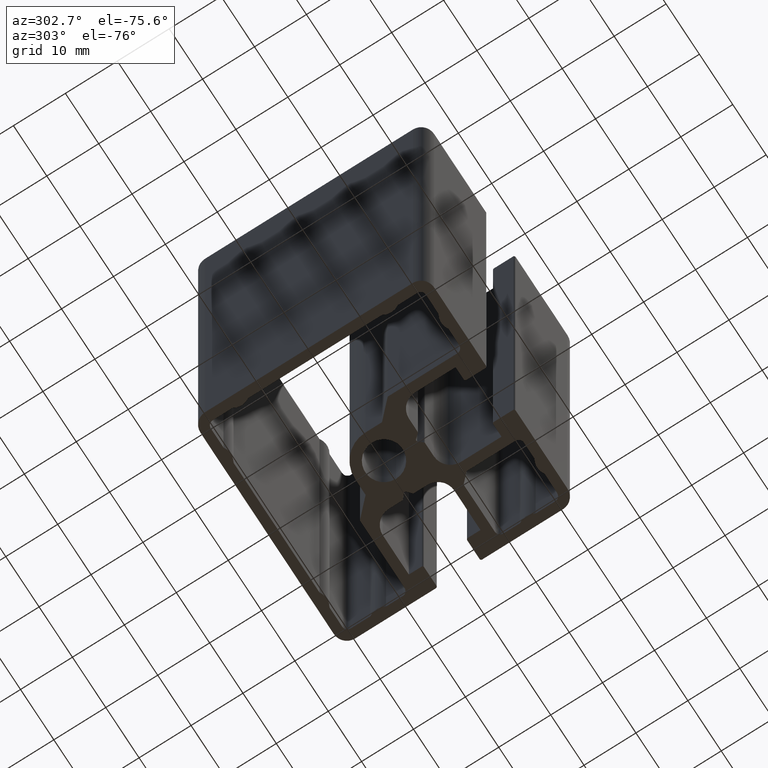
[diagram: clean part render]
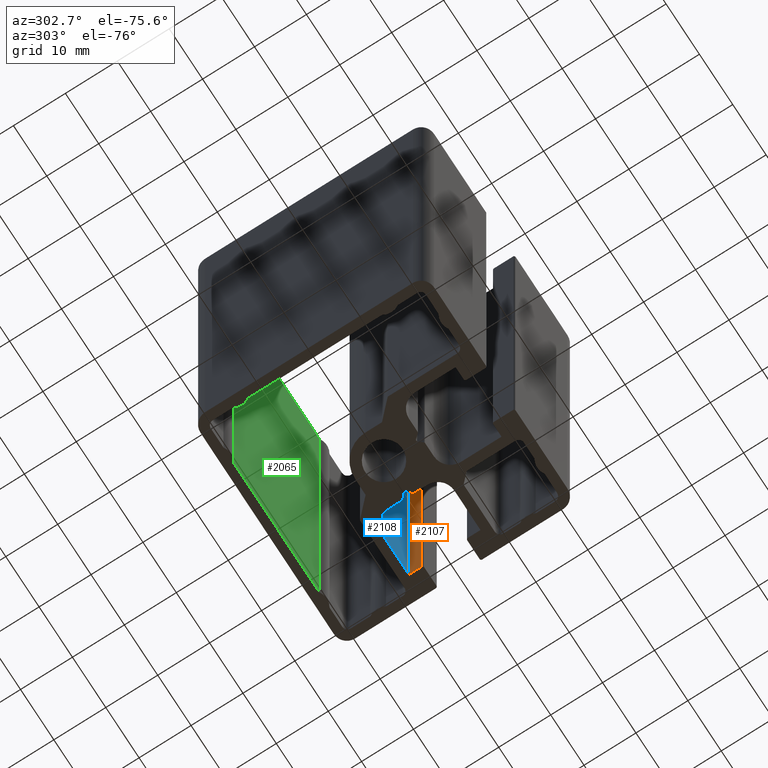
[diagram: same view with three faces highlighted in distinct colors, each labeled with its STEP entity id]
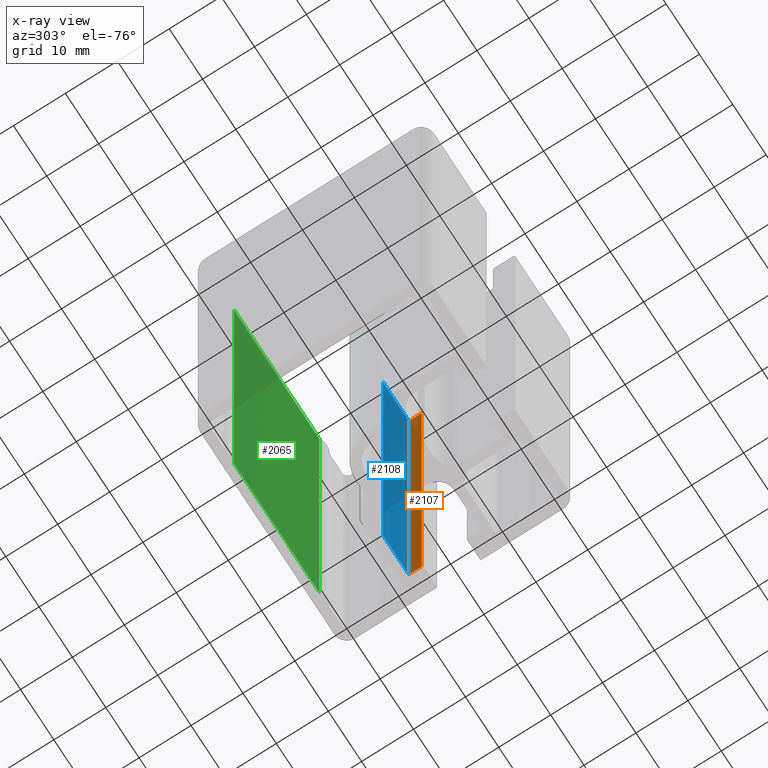
[diagram: x-ray of the same camera — body ghosted, the three highlighted faces saturated]
A machine part, auxiliary view with three faces highlighted in distinct colors.
The next image is the same camera in x-ray (body ghosted, the three faces saturated) — at least one of them is partly hidden behind the body in this view.
Their STEP definitions:

[orange] entity #2107 — the highlighted planar face has unit normal (1, 0, 0).
#279=FACE_OUTER_BOUND('',#387,.T.);
#387=EDGE_LOOP('',(#1693,#1694,#1695,#1696));
#579=LINE('',#3529,#781);
#580=LINE('',#3533,#782);
#581=LINE('',#3535,#783);
#582=LINE('',#3536,#784);
#781=VECTOR('',#2892,100.);
#782=VECTOR('',#2897,2.45);
#783=VECTOR('',#2898,100.);
#784=VECTOR('',#2899,2.45);
#997=VERTEX_POINT('',#3526);
#998=VERTEX_POINT('',#3528);
#999=VERTEX_POINT('',#3532);
#1000=VERTEX_POINT('',#3534);
#1292=EDGE_CURVE('',#998,#997,#579,.T.);
#1294=EDGE_CURVE('',#999,#997,#580,.T.);
#1295=EDGE_CURVE('',#1000,#999,#581,.T.);
#1296=EDGE_CURVE('',#998,#1000,#582,.T.);
#1693=ORIENTED_EDGE('',*,*,#1294,.F.);
#1694=ORIENTED_EDGE('',*,*,#1295,.F.);
#1695=ORIENTED_EDGE('',*,*,#1296,.F.);
#1696=ORIENTED_EDGE('',*,*,#1292,.T.);
#2006=PLANE('',#2316);
#2107=ADVANCED_FACE('',(#279),#2006,.F.);
#2316=AXIS2_PLACEMENT_3D('',#3531,#2895,#2896);
#2892=DIRECTION('',(0.,0.,1.));
#2895=DIRECTION('center_axis',(1.,0.,0.));
#2896=DIRECTION('ref_axis',(0.,1.,0.));
#2897=DIRECTION('',(0.,-1.,0.));
#2898=DIRECTION('',(0.,0.,1.));
#2899=DIRECTION('',(0.,1.,0.));
#3526=CARTESIAN_POINT('',(18.2000000000006,4.44999999999999,100.));
#3528=CARTESIAN_POINT('',(18.2000000000006,4.44999999999999,0.));
#3529=CARTESIAN_POINT('',(18.2000000000006,4.44999999999999,0.));
#3531=CARTESIAN_POINT('Origin',(18.2000000000006,4.44999999999999,0.));
#3532=CARTESIAN_POINT('',(18.2000000000006,6.9,100.));
#3533=CARTESIAN_POINT('',(18.2000000000006,2.225,100.));
#3534=CARTESIAN_POINT('',(18.2000000000006,6.9,0.));
#3535=CARTESIAN_POINT('',(18.2000000000006,6.9,0.));
#3536=CARTESIAN_POINT('',(18.2000000000006,2.225,0.));

[blue] entity #2108 — the highlighted planar face has unit normal (-0, 1, 0).
#280=FACE_OUTER_BOUND('',#388,.T.);
#388=EDGE_LOOP('',(#1697,#1698,#1699,#1700));
#581=LINE('',#3535,#783);
#583=LINE('',#3539,#785);
#584=LINE('',#3541,#786);
#585=LINE('',#3542,#787);
#783=VECTOR('',#2898,100.);
#785=VECTOR('',#2902,7.8);
#786=VECTOR('',#2903,100.);
#787=VECTOR('',#2904,7.8);
#999=VERTEX_POINT('',#3532);
#1000=VERTEX_POINT('',#3534);
#1001=VERTEX_POINT('',#3538);
#1002=VERTEX_POINT('',#3540);
#1295=EDGE_CURVE('',#1000,#999,#581,.T.);
#1297=EDGE_CURVE('',#1001,#999,#583,.T.);
#1298=EDGE_CURVE('',#1002,#1001,#584,.T.);
#1299=EDGE_CURVE('',#1000,#1002,#585,.T.);
#1697=ORIENTED_EDGE('',*,*,#1297,.F.);
#1698=ORIENTED_EDGE('',*,*,#1298,.F.);
#1699=ORIENTED_EDGE('',*,*,#1299,.F.);
#1700=ORIENTED_EDGE('',*,*,#1295,.T.);
#2007=PLANE('',#2317);
#2108=ADVANCED_FACE('',(#280),#2007,.F.);
#2317=AXIS2_PLACEMENT_3D('',#3537,#2900,#2901);
#2898=DIRECTION('',(0.,0.,1.));
#2900=DIRECTION('center_axis',(-1.64099503216711E-12,1.,0.));
#2901=DIRECTION('ref_axis',(-1.,-1.64099844823795E-12,0.));
#2902=DIRECTION('',(1.,1.64099503216711E-12,0.));
#2903=DIRECTION('',(0.,0.,1.));
#2904=DIRECTION('',(-1.,-1.64099503216711E-12,0.));
#3532=CARTESIAN_POINT('',(18.2000000000006,6.9,100.));
#3534=CARTESIAN_POINT('',(18.2000000000006,6.9,0.));
#3535=CARTESIAN_POINT('',(18.2000000000006,6.9,0.));
#3537=CARTESIAN_POINT('Origin',(18.2000000000006,6.9,0.));
#3538=CARTESIAN_POINT('',(10.4000000000006,6.8999999999872,100.));
#3539=CARTESIAN_POINT('',(9.09999999999464,6.89999999998506,100.));
#3540=CARTESIAN_POINT('',(10.4000000000006,6.8999999999872,0.));
#3541=CARTESIAN_POINT('',(10.4000000000006,6.8999999999872,0.));
#3542=CARTESIAN_POINT('',(9.09999999999464,6.89999999998506,0.));

[green] entity #2065 — the highlighted planar face has unit normal (-0, 1, 0).
#237=FACE_OUTER_BOUND('',#344,.T.);
#344=EDGE_LOOP('',(#1527,#1528,#1529,#1530));
#498=LINE('',#3273,#700);
#499=LINE('',#3276,#701);
#500=LINE('',#3278,#702);
#501=LINE('',#3279,#703);
#700=VECTOR('',#2637,100.);
#701=VECTOR('',#2640,25.6564351446596);
#702=VECTOR('',#2641,25.6564351446596);
#703=VECTOR('',#2642,100.);
#909=VERTEX_POINT('',#3269);
#910=VERTEX_POINT('',#3271);
#911=VERTEX_POINT('',#3275);
#912=VERTEX_POINT('',#3277);
#1166=EDGE_CURVE('',#910,#909,#498,.T.);
#1167=EDGE_CURVE('',#909,#911,#499,.T.);
#1168=EDGE_CURVE('',#912,#910,#500,.T.);
#1169=EDGE_CURVE('',#912,#911,#501,.T.);
#1527=ORIENTED_EDGE('',*,*,#1167,.F.);
#1528=ORIENTED_EDGE('',*,*,#1166,.F.);
#1529=ORIENTED_EDGE('',*,*,#1168,.F.);
#1530=ORIENTED_EDGE('',*,*,#1169,.T.);
#1987=PLANE('',#2228);
#2065=ADVANCED_FACE('',(#237),#1987,.F.);
#2228=AXIS2_PLACEMENT_3D('',#3274,#2638,#2639);
#2637=DIRECTION('',(0.,0.,1.));
#2638=DIRECTION('center_axis',(-3.92916046471668E-14,1.,0.));
#2639=DIRECTION('ref_axis',(-1.,-3.94351218346856E-14,0.));
#2640=DIRECTION('',(1.,3.92916046471668E-14,0.));
#2641=DIRECTION('',(-1.,-3.92916046471668E-14,0.));
#2642=DIRECTION('',(0.,0.,1.));
#3269=CARTESIAN_POINT('',(-12.8282175723306,20.699999999999,100.));
#3271=CARTESIAN_POINT('',(-12.8282175723306,20.699999999999,0.));
#3273=CARTESIAN_POINT('',(-12.8282175723306,20.699999999999,0.));
#3274=CARTESIAN_POINT('Origin',(12.828217572329,20.7,0.));
#3275=CARTESIAN_POINT('',(12.828217572329,20.7,100.));
#3276=CARTESIAN_POINT('',(6.41410878616408,20.6999999999997,100.));
#3277=CARTESIAN_POINT('',(12.828217572329,20.7,0.));
#3278=CARTESIAN_POINT('',(6.41410878616408,20.6999999999997,0.));
#3279=CARTESIAN_POINT('',(12.828217572329,20.7,0.));